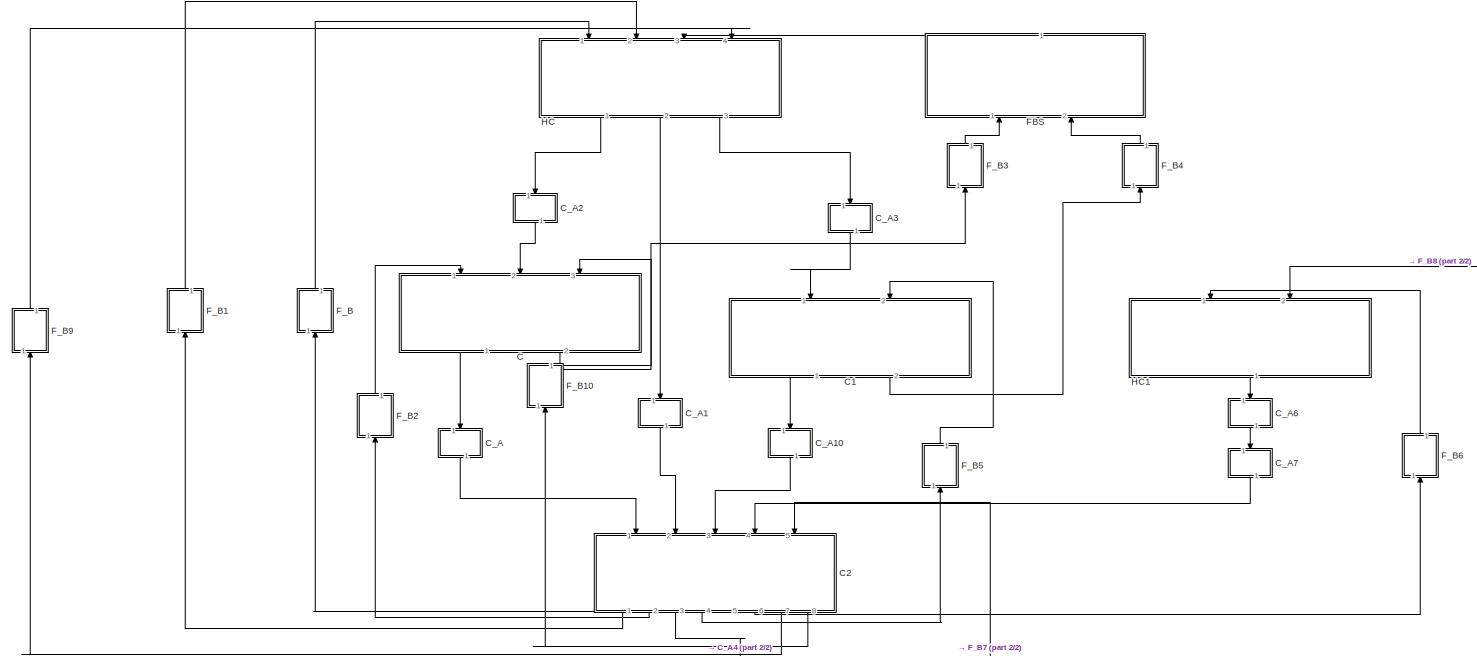
[diagram: root canvas - part 1/2, full width, top band]
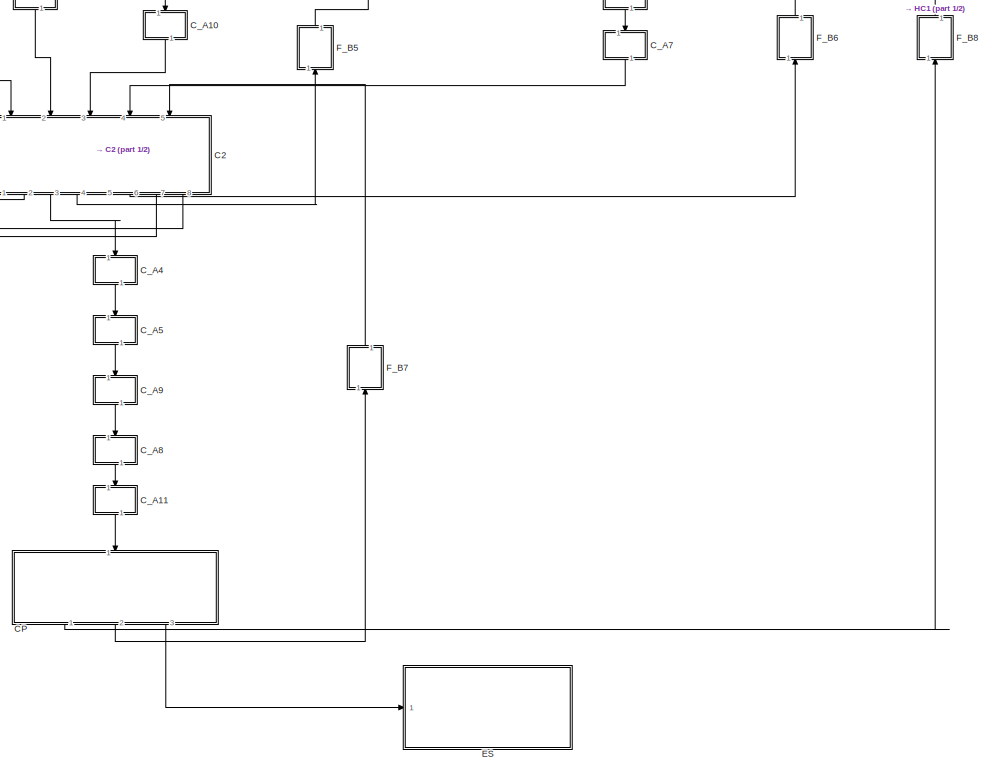
[diagram: root canvas - part 2/2, bottom right region]
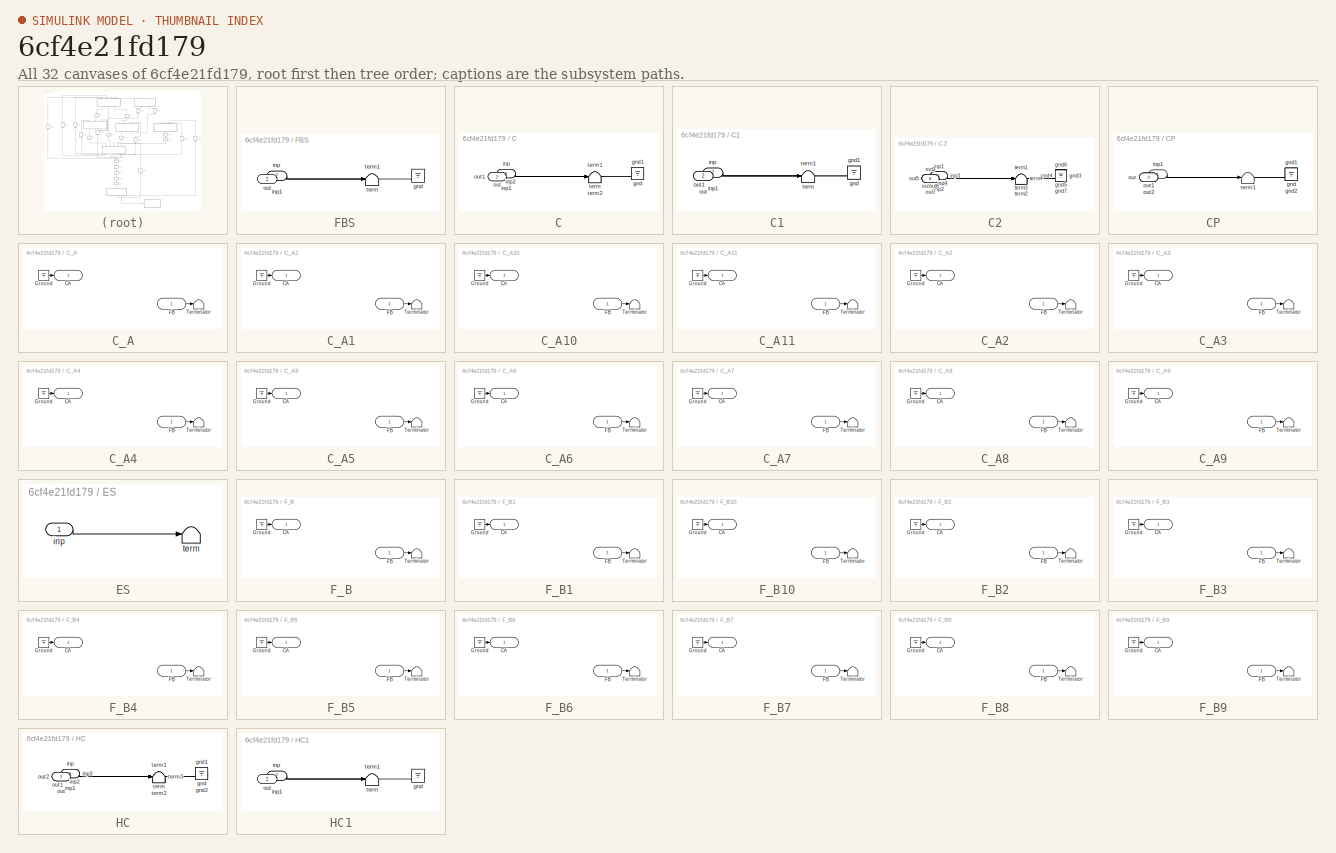
[diagram: thumbnail index - all 32 canvases of the model, root first then tree order]
MODEL slx_6cf4e21fd179
KIND model
CONFIG AbsTol = auto
CONFIG EnableMultiTasking = off
CONFIG FixedStep = auto
CONFIG MaxStep = auto
CONFIG MinStep = auto
CONFIG RelTol = 1e-3
CONFIG SampleTimeConstraint = Unconstrained
CONFIG Solver = VariableStepAuto
CONFIG SolverName = VariableStepAuto
CONFIG StartTime = 0.0
CONFIG StopTime = 10.0
BLOCK [SubSystem]  FBS
  NameLocation = left
  Ports = [2, 1]
  RTWFcnNameOpts = Use subsystem name
  RTWFileNameOpts = Use function name
  RTWSystemCode = Reusable function
  RequestExecContextInheritance = off
  TreatAsAtomicUnit = on
BLOCK [Ground]  FBS/gnd
BLOCK [Inport]  FBS/inp
BLOCK [Inport]  FBS/inp1
  Port = 2
BLOCK [Outport]  FBS/out
BLOCK [Terminator]  FBS/term
BLOCK [Terminator]  FBS/term1
BLOCK [SubSystem] C
  NameLocation = left
  Ports = [3, 2]
  RTWFcnNameOpts = Use subsystem name
  RTWFileNameOpts = Use function name
  RTWSystemCode = Reusable function
  RequestExecContextInheritance = off
  TreatAsAtomicUnit = on
BLOCK [Ground] C/gnd
BLOCK [Ground] C/gnd1
BLOCK [Inport] C/inp
BLOCK [Inport] C/inp1
  Port = 2
BLOCK [Inport] C/inp2
  Port = 3
BLOCK [Outport] C/out
BLOCK [Outport] C/out1
  Port = 2
BLOCK [Terminator] C/term
BLOCK [Terminator] C/term1
BLOCK [Terminator] C/term2
BLOCK [SubSystem] C1
  NameLocation = left
  Ports = [2, 2]
  RTWFcnNameOpts = Use subsystem name
  RTWFileNameOpts = Use function name
  RTWSystemCode = Reusable function
  RequestExecContextInheritance = off
  TreatAsAtomicUnit = on
BLOCK [Ground] C1/gnd
BLOCK [Ground] C1/gnd1
BLOCK [Inport] C1/inp
BLOCK [Inport] C1/inp1
  Port = 2
BLOCK [Outport] C1/out
  Port = 2
BLOCK [Outport] C1/out1
BLOCK [Terminator] C1/term
BLOCK [Terminator] C1/term1
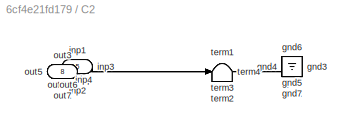
BLOCK [SubSystem] C2
  NameLocation = left
  Ports = [5, 8]
  RTWFcnNameOpts = Use subsystem name
  RTWFileNameOpts = Use function name
  RTWSystemCode = Reusable function
  RequestExecContextInheritance = off
  TreatAsAtomicUnit = on
BLOCK [Ground] C2/gnd
BLOCK [Ground] C2/gnd1
BLOCK [Ground] C2/gnd2
BLOCK [Ground] C2/gnd3
BLOCK [Ground] C2/gnd4
BLOCK [Ground] C2/gnd5
BLOCK [Ground] C2/gnd6
BLOCK [Ground] C2/gnd7
BLOCK [Inport] C2/inp
  Port = 3
BLOCK [Inport] C2/inp1
BLOCK [Inport] C2/inp2
  Port = 2
BLOCK [Inport] C2/inp3
  Port = 4
BLOCK [Inport] C2/inp4
  Port = 5
BLOCK [Outport] C2/out
BLOCK [Outport] C2/out1
  Port = 2
BLOCK [Outport] C2/out2
  Port = 3
BLOCK [Outport] C2/out3
  Port = 4
BLOCK [Outport] C2/out4
  Port = 5
BLOCK [Outport] C2/out5
  Port = 6
BLOCK [Outport] C2/out6
  Port = 7
BLOCK [Outport] C2/out7
  Port = 8
BLOCK [Terminator] C2/term
BLOCK [Terminator] C2/term1
BLOCK [Terminator] C2/term2
BLOCK [Terminator] C2/term3
BLOCK [Terminator] C2/term4
BLOCK [SubSystem] CP
  NameLocation = left
  Ports = [1, 3]
  RTWFcnNameOpts = Use subsystem name
  RTWFileNameOpts = Use function name
  RTWSystemCode = Reusable function
  RequestExecContextInheritance = off
  TreatAsAtomicUnit = on
BLOCK [Ground] CP/gnd
BLOCK [Ground] CP/gnd1
BLOCK [Ground] CP/gnd2
BLOCK [Inport] CP/inp1
BLOCK [Outport] CP/out
  Port = 3
BLOCK [Outport] CP/out1
BLOCK [Outport] CP/out2
  Port = 2
BLOCK [Terminator] CP/term1
BLOCK [SubSystem] C_A
  AttributesFormatString = %<DES>
  NameLocation = left
  Ports = [1, 1]
  RTWFcnNameOpts = Use subsystem name
  RTWFileNameOpts = Use function name
  RTWSystemCode = Reusable function
  RequestExecContextInheritance = off
  TreatAsAtomicUnit = on
BLOCK [Outport] C_A/CA
BLOCK [Inport] C_A/FB
BLOCK [Ground] C_A/Ground
BLOCK [Terminator] C_A/Terminator
BLOCK [SubSystem] C_A1
  AttributesFormatString = %<DES>
  NameLocation = left
  Ports = [1, 1]
  RTWFcnNameOpts = Use subsystem name
  RTWFileNameOpts = Use function name
  RTWSystemCode = Reusable function
  RequestExecContextInheritance = off
  TreatAsAtomicUnit = on
BLOCK [Outport] C_A1/CA
BLOCK [Inport] C_A1/FB
BLOCK [Ground] C_A1/Ground
BLOCK [Terminator] C_A1/Terminator
BLOCK [SubSystem] C_A10
  AttributesFormatString = %<DES>
  NameLocation = left
  Ports = [1, 1]
  RTWFcnNameOpts = Use subsystem name
  RTWFileNameOpts = Use function name
  RTWSystemCode = Reusable function
  RequestExecContextInheritance = off
  TreatAsAtomicUnit = on
BLOCK [Outport] C_A10/CA
BLOCK [Inport] C_A10/FB
BLOCK [Ground] C_A10/Ground
BLOCK [Terminator] C_A10/Terminator
BLOCK [SubSystem] C_A11
  AttributesFormatString = %<DES>
  NameLocation = left
  Ports = [1, 1]
  RTWFcnNameOpts = Use subsystem name
  RTWFileNameOpts = Use function name
  RTWSystemCode = Reusable function
  RequestExecContextInheritance = off
  TreatAsAtomicUnit = on
BLOCK [Outport] C_A11/CA
BLOCK [Inport] C_A11/FB
BLOCK [Ground] C_A11/Ground
BLOCK [Terminator] C_A11/Terminator
BLOCK [SubSystem] C_A2
  AttributesFormatString = %<DES>
  NameLocation = left
  Ports = [1, 1]
  RTWFcnNameOpts = Use subsystem name
  RTWFileNameOpts = Use function name
  RTWSystemCode = Reusable function
  RequestExecContextInheritance = off
  TreatAsAtomicUnit = on
BLOCK [Outport] C_A2/CA
BLOCK [Inport] C_A2/FB
BLOCK [Ground] C_A2/Ground
BLOCK [Terminator] C_A2/Terminator
BLOCK [SubSystem] C_A3
  AttributesFormatString = %<DES>
  NameLocation = left
  Ports = [1, 1]
  RTWFcnNameOpts = Use subsystem name
  RTWFileNameOpts = Use function name
  RTWSystemCode = Reusable function
  RequestExecContextInheritance = off
  TreatAsAtomicUnit = on
BLOCK [Outport] C_A3/CA
BLOCK [Inport] C_A3/FB
BLOCK [Ground] C_A3/Ground
BLOCK [Terminator] C_A3/Terminator
BLOCK [SubSystem] C_A4
  AttributesFormatString = %<DES>
  NameLocation = left
  Ports = [1, 1]
  RTWFcnNameOpts = Use subsystem name
  RTWFileNameOpts = Use function name
  RTWSystemCode = Reusable function
  RequestExecContextInheritance = off
  TreatAsAtomicUnit = on
BLOCK [Outport] C_A4/CA
BLOCK [Inport] C_A4/FB
BLOCK [Ground] C_A4/Ground
BLOCK [Terminator] C_A4/Terminator
BLOCK [SubSystem] C_A5
  AttributesFormatString = %<DES>
  NameLocation = left
  Ports = [1, 1]
  RTWFcnNameOpts = Use subsystem name
  RTWFileNameOpts = Use function name
  RTWSystemCode = Reusable function
  RequestExecContextInheritance = off
  TreatAsAtomicUnit = on
BLOCK [Outport] C_A5/CA
BLOCK [Inport] C_A5/FB
BLOCK [Ground] C_A5/Ground
BLOCK [Terminator] C_A5/Terminator
BLOCK [SubSystem] C_A6
  AttributesFormatString = %<DES>
  NameLocation = left
  Ports = [1, 1]
  RTWFcnNameOpts = Use subsystem name
  RTWFileNameOpts = Use function name
  RTWSystemCode = Reusable function
  RequestExecContextInheritance = off
  TreatAsAtomicUnit = on
BLOCK [Outport] C_A6/CA
BLOCK [Inport] C_A6/FB
BLOCK [Ground] C_A6/Ground
BLOCK [Terminator] C_A6/Terminator
BLOCK [SubSystem] C_A7
  AttributesFormatString = %<DES>
  NameLocation = left
  Ports = [1, 1]
  RTWFcnNameOpts = Use subsystem name
  RTWFileNameOpts = Use function name
  RTWSystemCode = Reusable function
  RequestExecContextInheritance = off
  TreatAsAtomicUnit = on
BLOCK [Outport] C_A7/CA
BLOCK [Inport] C_A7/FB
BLOCK [Ground] C_A7/Ground
BLOCK [Terminator] C_A7/Terminator
BLOCK [SubSystem] C_A8
  AttributesFormatString = %<DES>
  NameLocation = left
  Ports = [1, 1]
  RTWFcnNameOpts = Use subsystem name
  RTWFileNameOpts = Use function name
  RTWSystemCode = Reusable function
  RequestExecContextInheritance = off
  TreatAsAtomicUnit = on
BLOCK [Outport] C_A8/CA
BLOCK [Inport] C_A8/FB
BLOCK [Ground] C_A8/Ground
BLOCK [Terminator] C_A8/Terminator
BLOCK [SubSystem] C_A9
  AttributesFormatString = %<DES>
  NameLocation = left
  Ports = [1, 1]
  RTWFcnNameOpts = Use subsystem name
  RTWFileNameOpts = Use function name
  RTWSystemCode = Reusable function
  RequestExecContextInheritance = off
  TreatAsAtomicUnit = on
BLOCK [Outport] C_A9/CA
BLOCK [Inport] C_A9/FB
BLOCK [Ground] C_A9/Ground
BLOCK [Terminator] C_A9/Terminator
BLOCK [SubSystem] ES
  NameLocation = top
  Ports = [1]
  RTWFcnNameOpts = Use subsystem name
  RTWFileNameOpts = Use function name
  RTWSystemCode = Reusable function
  RequestExecContextInheritance = off
  TreatAsAtomicUnit = on
BLOCK [Inport] ES/inp
BLOCK [Terminator] ES/term
BLOCK [SubSystem] F_B
  AttributesFormatString = %<DES>
  NameLocation = left
  Ports = [1, 1]
  RTWFcnNameOpts = Use subsystem name
  RTWFileNameOpts = Use function name
  RTWSystemCode = Reusable function
  RequestExecContextInheritance = off
  TreatAsAtomicUnit = on
BLOCK [Outport] F_B/CA
BLOCK [Inport] F_B/FB
BLOCK [Ground] F_B/Ground
BLOCK [Terminator] F_B/Terminator
BLOCK [SubSystem] F_B1
  AttributesFormatString = %<DES>
  NameLocation = left
  Ports = [1, 1]
  RTWFcnNameOpts = Use subsystem name
  RTWFileNameOpts = Use function name
  RTWSystemCode = Reusable function
  RequestExecContextInheritance = off
  TreatAsAtomicUnit = on
BLOCK [Outport] F_B1/CA
BLOCK [Inport] F_B1/FB
BLOCK [Ground] F_B1/Ground
BLOCK [Terminator] F_B1/Terminator
BLOCK [SubSystem] F_B10
  AttributesFormatString = %<DES>
  NameLocation = left
  Ports = [1, 1]
  RTWFcnNameOpts = Use subsystem name
  RTWFileNameOpts = Use function name
  RTWSystemCode = Reusable function
  RequestExecContextInheritance = off
  TreatAsAtomicUnit = on
BLOCK [Outport] F_B10/CA
BLOCK [Inport] F_B10/FB
BLOCK [Ground] F_B10/Ground
BLOCK [Terminator] F_B10/Terminator
BLOCK [SubSystem] F_B2
  AttributesFormatString = %<DES>
  NameLocation = left
  Ports = [1, 1]
  RTWFcnNameOpts = Use subsystem name
  RTWFileNameOpts = Use function name
  RTWSystemCode = Reusable function
  RequestExecContextInheritance = off
  TreatAsAtomicUnit = on
BLOCK [Outport] F_B2/CA
BLOCK [Inport] F_B2/FB
BLOCK [Ground] F_B2/Ground
BLOCK [Terminator] F_B2/Terminator
BLOCK [SubSystem] F_B3
  AttributesFormatString = %<DES>
  NameLocation = left
  Ports = [1, 1]
  RTWFcnNameOpts = Use subsystem name
  RTWFileNameOpts = Use function name
  RTWSystemCode = Reusable function
  RequestExecContextInheritance = off
  TreatAsAtomicUnit = on
BLOCK [Outport] F_B3/CA
BLOCK [Inport] F_B3/FB
BLOCK [Ground] F_B3/Ground
BLOCK [Terminator] F_B3/Terminator
BLOCK [SubSystem] F_B4
  AttributesFormatString = %<DES>
  NameLocation = left
  Ports = [1, 1]
  RTWFcnNameOpts = Use subsystem name
  RTWFileNameOpts = Use function name
  RTWSystemCode = Reusable function
  RequestExecContextInheritance = off
  TreatAsAtomicUnit = on
BLOCK [Outport] F_B4/CA
BLOCK [Inport] F_B4/FB
BLOCK [Ground] F_B4/Ground
BLOCK [Terminator] F_B4/Terminator
BLOCK [SubSystem] F_B5
  AttributesFormatString = %<DES>
  NameLocation = left
  Ports = [1, 1]
  RTWFcnNameOpts = Use subsystem name
  RTWFileNameOpts = Use function name
  RTWSystemCode = Reusable function
  RequestExecContextInheritance = off
  TreatAsAtomicUnit = on
BLOCK [Outport] F_B5/CA
BLOCK [Inport] F_B5/FB
BLOCK [Ground] F_B5/Ground
BLOCK [Terminator] F_B5/Terminator
BLOCK [SubSystem] F_B6
  AttributesFormatString = %<DES>
  NameLocation = left
  Ports = [1, 1]
  RTWFcnNameOpts = Use subsystem name
  RTWFileNameOpts = Use function name
  RTWSystemCode = Reusable function
  RequestExecContextInheritance = off
  TreatAsAtomicUnit = on
BLOCK [Outport] F_B6/CA
BLOCK [Inport] F_B6/FB
BLOCK [Ground] F_B6/Ground
BLOCK [Terminator] F_B6/Terminator
BLOCK [SubSystem] F_B7
  AttributesFormatString = %<DES>
  NameLocation = left
  Ports = [1, 1]
  RTWFcnNameOpts = Use subsystem name
  RTWFileNameOpts = Use function name
  RTWSystemCode = Reusable function
  RequestExecContextInheritance = off
  TreatAsAtomicUnit = on
BLOCK [Outport] F_B7/CA
BLOCK [Inport] F_B7/FB
BLOCK [Ground] F_B7/Ground
BLOCK [Terminator] F_B7/Terminator
BLOCK [SubSystem] F_B8
  AttributesFormatString = %<DES>
  NameLocation = left
  Ports = [1, 1]
  RTWFcnNameOpts = Use subsystem name
  RTWFileNameOpts = Use function name
  RTWSystemCode = Reusable function
  RequestExecContextInheritance = off
  TreatAsAtomicUnit = on
BLOCK [Outport] F_B8/CA
BLOCK [Inport] F_B8/FB
BLOCK [Ground] F_B8/Ground
BLOCK [Terminator] F_B8/Terminator
BLOCK [SubSystem] F_B9
  AttributesFormatString = %<DES>
  NameLocation = left
  Ports = [1, 1]
  RTWFcnNameOpts = Use subsystem name
  RTWFileNameOpts = Use function name
  RTWSystemCode = Reusable function
  RequestExecContextInheritance = off
  TreatAsAtomicUnit = on
BLOCK [Outport] F_B9/CA
BLOCK [Inport] F_B9/FB
BLOCK [Ground] F_B9/Ground
BLOCK [Terminator] F_B9/Terminator
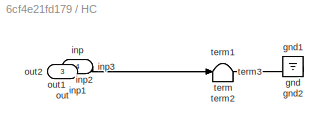
BLOCK [SubSystem] HC
  NameLocation = left
  Ports = [4, 3]
  RTWFcnNameOpts = Use subsystem name
  RTWFileNameOpts = Use function name
  RTWSystemCode = Reusable function
  RequestExecContextInheritance = off
  TreatAsAtomicUnit = on
BLOCK [Ground] HC/gnd
BLOCK [Ground] HC/gnd1
BLOCK [Ground] HC/gnd2
BLOCK [Inport] HC/inp
BLOCK [Inport] HC/inp1
  Port = 2
BLOCK [Inport] HC/inp2
  Port = 3
BLOCK [Inport] HC/inp3
  Port = 4
BLOCK [Outport] HC/out
  Port = 3
BLOCK [Outport] HC/out1
BLOCK [Outport] HC/out2
  Port = 2
BLOCK [Terminator] HC/term
BLOCK [Terminator] HC/term1
BLOCK [Terminator] HC/term2
BLOCK [Terminator] HC/term3
BLOCK [SubSystem] HC1
  NameLocation = left
  Ports = [2, 1]
  RTWFcnNameOpts = Use subsystem name
  RTWFileNameOpts = Use function name
  RTWSystemCode = Reusable function
  RequestExecContextInheritance = off
  TreatAsAtomicUnit = on
BLOCK [Ground] HC1/gnd
BLOCK [Inport] HC1/inp
BLOCK [Inport] HC1/inp1
  Port = 2
BLOCK [Outport] HC1/out
BLOCK [Terminator] HC1/term
BLOCK [Terminator] HC1/term1
LINE  FBS/gnd:1 ->  FBS/out:1
LINE  FBS/inp1:1 ->  FBS/term1:1
LINE  FBS/inp:1 ->  FBS/term:1
LINE  FBS:1 -> HC:3
LINE C/gnd1:1 -> C/out1:1
LINE C/gnd:1 -> C/out:1
LINE C/inp1:1 -> C/term1:1
LINE C/inp2:1 -> C/term2:1
LINE C/inp:1 -> C/term:1
LINE C1/gnd1:1 -> C1/out1:1
LINE C1/gnd:1 -> C1/out:1
LINE C1/inp1:1 -> C1/term1:1
LINE C1/inp:1 -> C1/term:1
LINE C1:1 -> C_A10:1
LINE C1:2 -> F_B4:1
LINE C2/gnd1:1 -> C2/out1:1
LINE C2/gnd2:1 -> C2/out2:1
LINE C2/gnd3:1 -> C2/out3:1
LINE C2/gnd4:1 -> C2/out4:1
LINE C2/gnd5:1 -> C2/out5:1
LINE C2/gnd6:1 -> C2/out6:1
LINE C2/gnd7:1 -> C2/out7:1
LINE C2/gnd:1 -> C2/out:1
LINE C2/inp1:1 -> C2/term1:1
LINE C2/inp2:1 -> C2/term2:1
LINE C2/inp3:1 -> C2/term3:1
LINE C2/inp4:1 -> C2/term4:1
LINE C2/inp:1 -> C2/term:1
LINE C2:1 -> F_B1:1
LINE C2:2 -> F_B2:1
LINE C2:3 -> C_A4:1
LINE C2:4 -> F_B5:1
LINE C2:5 -> F_B:1
LINE C2:6 -> F_B6:1
LINE C2:7 -> F_B9:1
LINE C2:8 -> F_B10:1
LINE C:1 -> C_A:1
LINE C:2 -> F_B3:1
LINE CP/gnd1:1 -> CP/out1:1
LINE CP/gnd2:1 -> CP/out2:1
LINE CP/gnd:1 -> CP/out:1
LINE CP/inp1:1 -> CP/term1:1
LINE CP:1 -> F_B8:1
LINE CP:2 -> F_B7:1
LINE CP:3 -> ES:1
LINE C_A/FB:1 -> C_A/Terminator:1
LINE C_A/Ground:1 -> C_A/CA:1
LINE C_A1/FB:1 -> C_A1/Terminator:1
LINE C_A1/Ground:1 -> C_A1/CA:1
LINE C_A10/FB:1 -> C_A10/Terminator:1
LINE C_A10/Ground:1 -> C_A10/CA:1
LINE C_A10:1 -> C2:3
LINE C_A11/FB:1 -> C_A11/Terminator:1
LINE C_A11/Ground:1 -> C_A11/CA:1
LINE C_A11:1 -> CP:1
LINE C_A1:1 -> C2:2
LINE C_A2/FB:1 -> C_A2/Terminator:1
LINE C_A2/Ground:1 -> C_A2/CA:1
LINE C_A2:1 -> C:2
LINE C_A3/FB:1 -> C_A3/Terminator:1
LINE C_A3/Ground:1 -> C_A3/CA:1
LINE C_A3:1 -> C1:1
LINE C_A4/FB:1 -> C_A4/Terminator:1
LINE C_A4/Ground:1 -> C_A4/CA:1
LINE C_A4:1 -> C_A5:1
LINE C_A5/FB:1 -> C_A5/Terminator:1
LINE C_A5/Ground:1 -> C_A5/CA:1
LINE C_A5:1 -> C_A9:1
LINE C_A6/FB:1 -> C_A6/Terminator:1
LINE C_A6/Ground:1 -> C_A6/CA:1
LINE C_A6:1 -> C_A7:1
LINE C_A7/FB:1 -> C_A7/Terminator:1
LINE C_A7/Ground:1 -> C_A7/CA:1
LINE C_A7:1 -> C2:4
LINE C_A8/FB:1 -> C_A8/Terminator:1
LINE C_A8/Ground:1 -> C_A8/CA:1
LINE C_A8:1 -> C_A11:1
LINE C_A9/FB:1 -> C_A9/Terminator:1
LINE C_A9/Ground:1 -> C_A9/CA:1
LINE C_A9:1 -> C_A8:1
LINE C_A:1 -> C2:1
LINE ES/inp:1 -> ES/term:1
LINE F_B/FB:1 -> F_B/Terminator:1
LINE F_B/Ground:1 -> F_B/CA:1
LINE F_B1/FB:1 -> F_B1/Terminator:1
LINE F_B1/Ground:1 -> F_B1/CA:1
LINE F_B10/FB:1 -> F_B10/Terminator:1
LINE F_B10/Ground:1 -> F_B10/CA:1
LINE F_B10:1 -> C:3
LINE F_B1:1 -> HC:2
LINE F_B2/FB:1 -> F_B2/Terminator:1
LINE F_B2/Ground:1 -> F_B2/CA:1
LINE F_B2:1 -> C:1
LINE F_B3/FB:1 -> F_B3/Terminator:1
LINE F_B3/Ground:1 -> F_B3/CA:1
LINE F_B3:1 ->  FBS:1
LINE F_B4/FB:1 -> F_B4/Terminator:1
LINE F_B4/Ground:1 -> F_B4/CA:1
LINE F_B4:1 ->  FBS:2
LINE F_B5/FB:1 -> F_B5/Terminator:1
LINE F_B5/Ground:1 -> F_B5/CA:1
LINE F_B5:1 -> C1:2
LINE F_B6/FB:1 -> F_B6/Terminator:1
LINE F_B6/Ground:1 -> F_B6/CA:1
LINE F_B6:1 -> HC1:1
LINE F_B7/FB:1 -> F_B7/Terminator:1
LINE F_B7/Ground:1 -> F_B7/CA:1
LINE F_B7:1 -> C2:5
LINE F_B8/FB:1 -> F_B8/Terminator:1
LINE F_B8/Ground:1 -> F_B8/CA:1
LINE F_B8:1 -> HC1:2
LINE F_B9/FB:1 -> F_B9/Terminator:1
LINE F_B9/Ground:1 -> F_B9/CA:1
LINE F_B9:1 -> HC:4
LINE F_B:1 -> HC:1
LINE HC/gnd1:1 -> HC/out1:1
LINE HC/gnd2:1 -> HC/out2:1
LINE HC/gnd:1 -> HC/out:1
LINE HC/inp1:1 -> HC/term1:1
LINE HC/inp2:1 -> HC/term2:1
LINE HC/inp3:1 -> HC/term3:1
LINE HC/inp:1 -> HC/term:1
LINE HC1/gnd:1 -> HC1/out:1
LINE HC1/inp1:1 -> HC1/term1:1
LINE HC1/inp:1 -> HC1/term:1
LINE HC1:1 -> C_A6:1
LINE HC:1 -> C_A2:1
LINE HC:2 -> C_A1:1
LINE HC:3 -> C_A3:1
